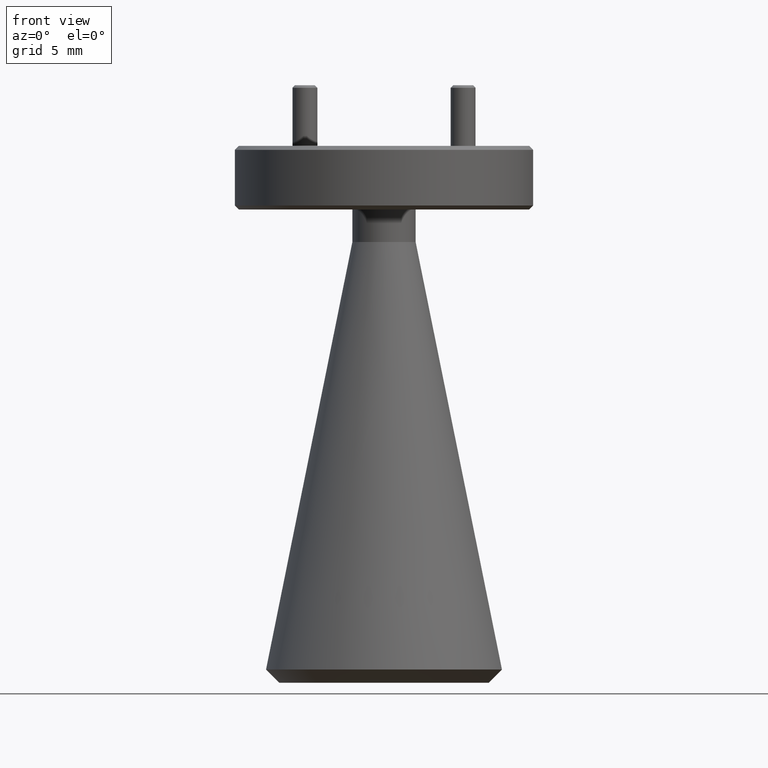
[diagram: clean part render]
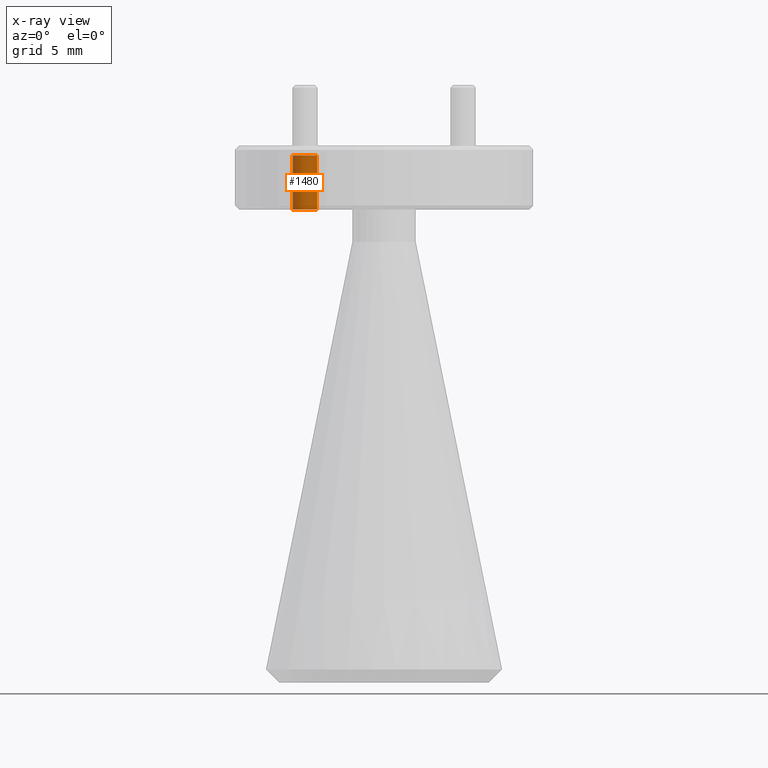
[diagram: x-ray — body ghosted, one internal face saturated and labeled with its STEP entity id]
A machine part, front view, then the same camera in x-ray: the body is ghosted and one INTERNAL B-rep face — a face not visible from any outside direction — is saturated and labeled: STEP entity #1480.
In plain terms, the highlighted cylindrical surface (edge-blend (fillet) strip) has radius 0.781 mm, axis along (-0, -0, 1).
Its self-contained STEP definition (entity closure, byte-faithful):
#89 = EDGE_CURVE ( 'NONE', #173, #422, #181, .T. ) ;
#121 = ORIENTED_EDGE ( 'NONE', *, *, #89, .T. ) ;
#173 = VERTEX_POINT ( 'NONE', #1197 ) ;
#181 = CIRCLE ( 'NONE', #1509, 0.03074999999999997180 ) ;
#193 = LINE ( 'NONE', #1098, #1755 ) ;
#260 = CARTESIAN_POINT ( 'NONE',  ( -0.1681237822087176259, 0.1988737822087153773, -0.02425000000000002848 ) ) ;
#304 = CYLINDRICAL_SURFACE ( 'NONE', #1593, 0.03074999999999997180 ) ;
#386 = ORIENTED_EDGE ( 'NONE', *, *, #1489, .T. ) ;
#422 = VERTEX_POINT ( 'NONE', #2220 ) ;
#434 = ORIENTED_EDGE ( 'NONE', *, *, #1904, .F. ) ;
#489 = DIRECTION ( 'NONE',  ( 1.000000000000000000, 0.000000000000000000, 0.000000000000000000 ) ) ;
#707 = CARTESIAN_POINT ( 'NONE',  ( -0.2296237822087175695, 0.1988737822087153773, -0.02425000000000002848 ) ) ;
#844 = EDGE_CURVE ( 'NONE', #422, #1502, #193, .T. ) ;
#957 = CARTESIAN_POINT ( 'NONE',  ( -0.1988737822087175977, 0.1988737822087153773, -0.1599999999999999756 ) ) ;
#994 = LINE ( 'NONE', #2073, #1553 ) ;
#1098 = CARTESIAN_POINT ( 'NONE',  ( -0.2296237822087175695, 0.1988737822087153773, -0.02000000000000000042 ) ) ;
#1110 = VERTEX_POINT ( 'NONE', #260 ) ;
#1165 = EDGE_LOOP ( 'NONE', ( #121, #1832, #386, #434 ) ) ;
#1170 = CARTESIAN_POINT ( 'NONE',  ( -0.1988737822087175977, 0.1988737822087153773, -0.02000000000000000042 ) ) ;
#1197 = CARTESIAN_POINT ( 'NONE',  ( -0.1681237822087176259, 0.1988737822087153773, -0.1599999999999999756 ) ) ;
#1372 = AXIS2_PLACEMENT_3D ( 'NONE', #1759, #1420, #489 ) ;
#1413 = DIRECTION ( 'NONE',  ( -0.000000000000000000, -0.000000000000000000, 1.000000000000000000 ) ) ;
#1420 = DIRECTION ( 'NONE',  ( -0.000000000000000000, -0.000000000000000000, 1.000000000000000000 ) ) ;
#1480 = ADVANCED_FACE ( 'NONE', ( #1932 ), #304, .F. ) ;
#1489 = EDGE_CURVE ( 'NONE', #1502, #1110, #1901, .T. ) ;
#1502 = VERTEX_POINT ( 'NONE', #707 ) ;
#1509 = AXIS2_PLACEMENT_3D ( 'NONE', #957, #1544, #1696 ) ;
#1544 = DIRECTION ( 'NONE',  ( 0.000000000000000000, 0.000000000000000000, -1.000000000000000000 ) ) ;
#1553 = VECTOR ( 'NONE', #1737, 39.37007874015748143 ) ;
#1593 = AXIS2_PLACEMENT_3D ( 'NONE', #1170, #1896, #1719 ) ;
#1696 = DIRECTION ( 'NONE',  ( -1.000000000000000000, 0.000000000000000000, 0.000000000000000000 ) ) ;
#1719 = DIRECTION ( 'NONE',  ( 1.000000000000000000, 0.000000000000000000, 0.000000000000000000 ) ) ;
#1737 = DIRECTION ( 'NONE',  ( -0.000000000000000000, -0.000000000000000000, 1.000000000000000000 ) ) ;
#1755 = VECTOR ( 'NONE', #1413, 39.37007874015748143 ) ;
#1759 = CARTESIAN_POINT ( 'NONE',  ( -0.1988737822087175977, 0.1988737822087153773, -0.02425000000000002848 ) ) ;
#1832 = ORIENTED_EDGE ( 'NONE', *, *, #844, .T. ) ;
#1896 = DIRECTION ( 'NONE',  ( -0.000000000000000000, -0.000000000000000000, 1.000000000000000000 ) ) ;
#1901 = CIRCLE ( 'NONE', #1372, 0.03074999999999997180 ) ;
#1904 = EDGE_CURVE ( 'NONE', #173, #1110, #994, .T. ) ;
#1932 = FACE_OUTER_BOUND ( 'NONE', #1165, .T. ) ;
#2073 = CARTESIAN_POINT ( 'NONE',  ( -0.1681237822087176259, 0.1988737822087153773, -0.02000000000000000042 ) ) ;
#2220 = CARTESIAN_POINT ( 'NONE',  ( -0.2296237822087175695, 0.1988737822087153773, -0.1599999999999999756 ) ) ;